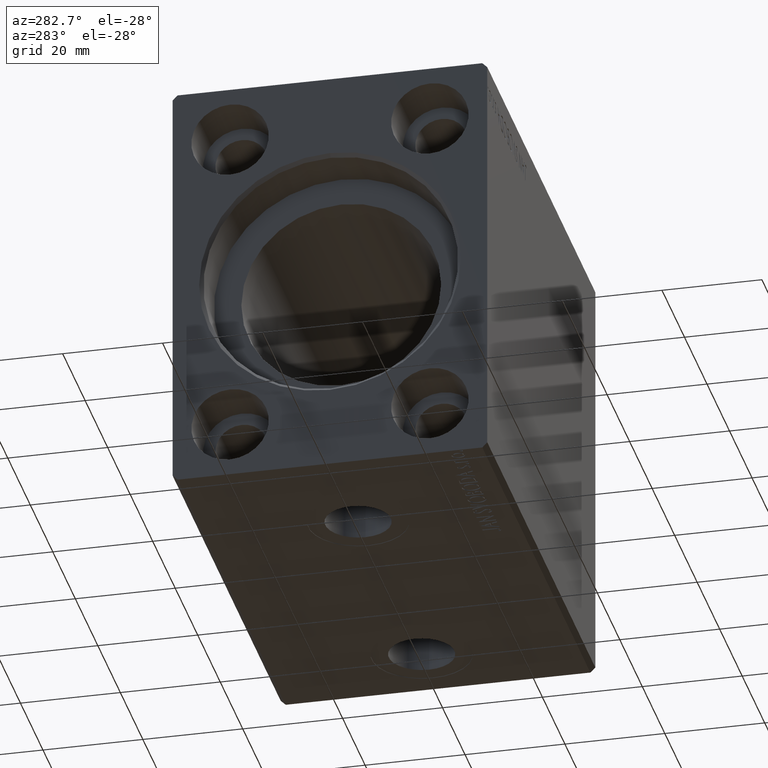
[diagram: clean part render]
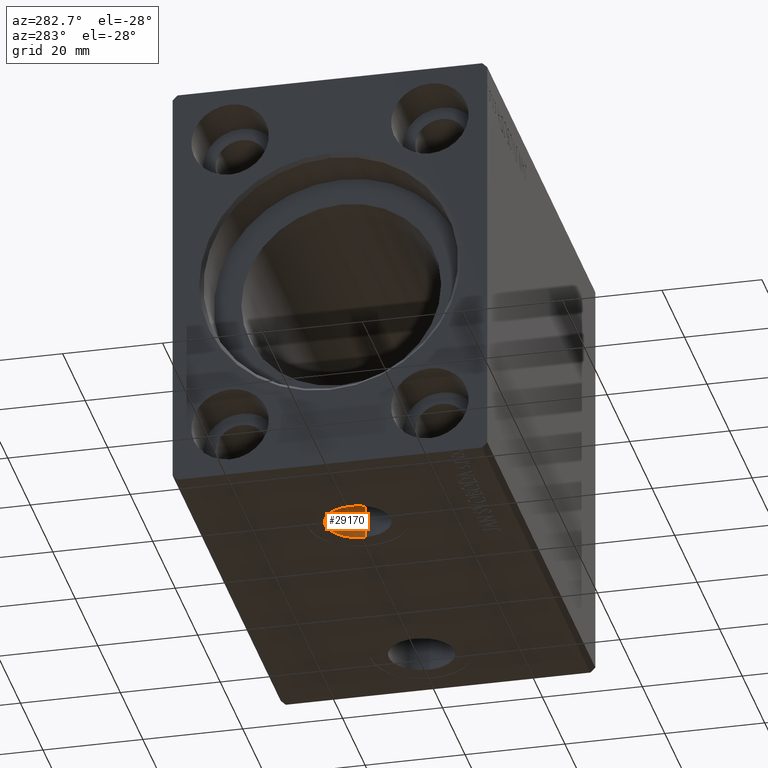
[diagram: same view with one face highlighted and labeled with its STEP entity id]
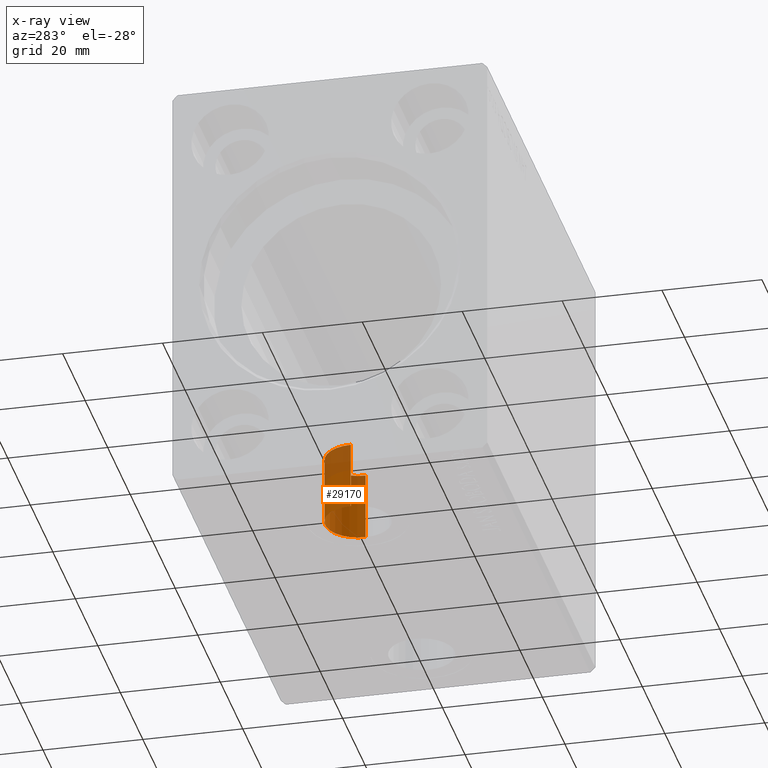
[diagram: x-ray of the same camera — body ghosted, the highlighted face saturated]
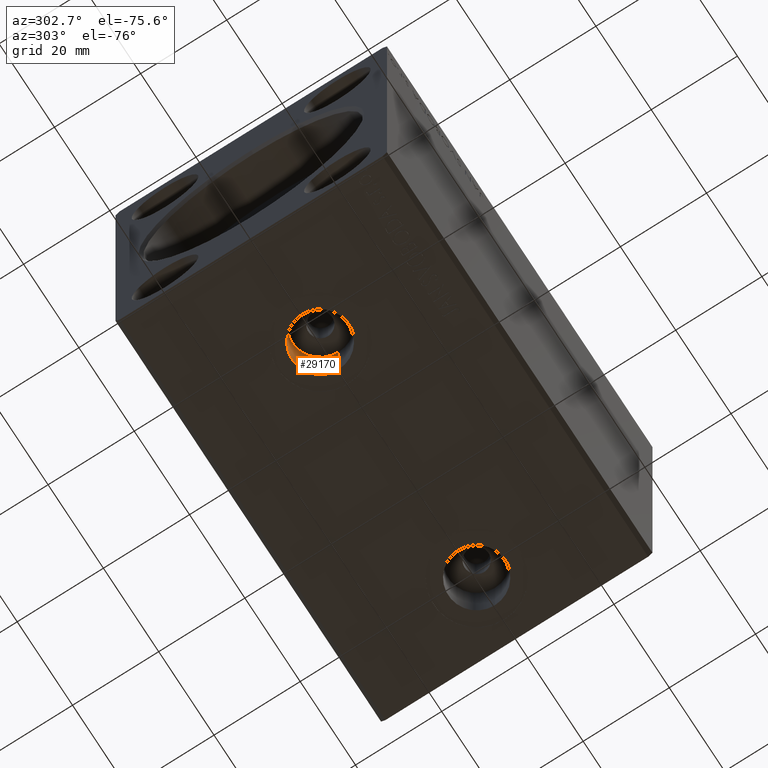
[diagram: same view with one face highlighted and labeled with its STEP entity id]
A machine part, auxiliary view. The second image highlights one B-rep face of the part: STEP entity #29170.
The next image is the same camera in x-ray: the body ghosted, the highlighted face saturated — about 34% of this face is hidden behind the body in this view.
A second angle (auxiliary view) of the same face is appended — the face is thin or edge-on in the first view.
In plain terms, the highlighted cylindrical surface (edge-blend (fillet) strip) has radius 6.58 mm, axis along (-0, -0, -1).
Its self-contained STEP definition (entity closure, byte-faithful):
#108 = ORIENTED_EDGE ( 'NONE', *, *, #204, .T. ) ;
#204 = EDGE_CURVE ( 'NONE', #29319, #208, #37788, .T. ) ;
#208 = VERTEX_POINT ( 'NONE', #37359 ) ;
#923 = CARTESIAN_POINT ( 'NONE',  ( 31.58000000000000540, -1.859936277612589271E-15, -28.80000000000000782 ) ) ;
#1219 = DIRECTION ( 'NONE',  ( 0.000000000000000000, 0.000000000000000000, -1.000000000000000000 ) ) ;
#1504 = AXIS2_PLACEMENT_3D ( 'NONE', #20447, #9940, #33356 ) ;
#1593 = EDGE_CURVE ( 'NONE', #29319, #11335, #34027, .T. ) ;
#5014 = ORIENTED_EDGE ( 'NONE', *, *, #35465, .F. ) ;
#7705 = CARTESIAN_POINT ( 'NONE',  ( 18.41999999999999815, -2.665753871451547918E-15, -28.80000000000000782 ) ) ;
#7847 = DIRECTION ( 'NONE',  ( -0.000000000000000000, -0.000000000000000000, -1.000000000000000000 ) ) ;
#9940 = DIRECTION ( 'NONE',  ( 0.000000000000000000, 0.000000000000000000, -1.000000000000000000 ) ) ;
#11062 = FACE_OUTER_BOUND ( 'NONE', #31767, .T. ) ;
#11335 = VERTEX_POINT ( 'NONE', #923 ) ;
#12286 = ORIENTED_EDGE ( 'NONE', *, *, #1593, .F. ) ;
#12637 = CARTESIAN_POINT ( 'NONE',  ( 31.58000000000000540, -1.859936277612589271E-15, -28.80000000000000782 ) ) ;
#14769 = VECTOR ( 'NONE', #24243, 1000.000000000000000 ) ;
#16638 = CARTESIAN_POINT ( 'NONE',  ( 18.41999999999999815, -2.665753871451547918E-15, -28.80000000000000782 ) ) ;
#18073 = VERTEX_POINT ( 'NONE', #32388 ) ;
#18651 = CIRCLE ( 'NONE', #1504, 6.580000000000002736 ) ;
#19055 = ORIENTED_EDGE ( 'NONE', *, *, #23963, .T. ) ;
#20447 = CARTESIAN_POINT ( 'NONE',  ( 25.00000000000000000, -2.665753871451547918E-15, -42.40000000000000568 ) ) ;
#23963 = EDGE_CURVE ( 'NONE', #208, #18073, #18651, .T. ) ;
#24243 = DIRECTION ( 'NONE',  ( -0.000000000000000000, -0.000000000000000000, -1.000000000000000000 ) ) ;
#25735 = DIRECTION ( 'NONE',  ( -0.000000000000000000, -0.000000000000000000, -1.000000000000000000 ) ) ;
#27625 = CARTESIAN_POINT ( 'NONE',  ( 25.00000000000000000, -2.665753871451547918E-15, -28.80000000000000782 ) ) ;
#29116 = VECTOR ( 'NONE', #25735, 1000.000000000000000 ) ;
#29170 = ADVANCED_FACE ( 'NONE', ( #11062 ), #40505, .F. ) ;
#29319 = VERTEX_POINT ( 'NONE', #16638 ) ;
#31767 = EDGE_LOOP ( 'NONE', ( #5014, #12286, #108, #19055 ) ) ;
#32388 = CARTESIAN_POINT ( 'NONE',  ( 31.58000000000000540, -1.859936277612589271E-15, -42.40000000000000568 ) ) ;
#33356 = DIRECTION ( 'NONE',  ( -1.000000000000000000, 0.000000000000000000, 0.000000000000000000 ) ) ;
#33997 = AXIS2_PLACEMENT_3D ( 'NONE', #27625, #1219, #40745 ) ;
#34027 = CIRCLE ( 'NONE', #33997, 6.580000000000002736 ) ;
#34066 = DIRECTION ( 'NONE',  ( -1.000000000000000000, 0.000000000000000000, 0.000000000000000000 ) ) ;
#35465 = EDGE_CURVE ( 'NONE', #11335, #18073, #42078, .T. ) ;
#37290 = CARTESIAN_POINT ( 'NONE',  ( 25.00000000000000000, -2.665753871451547918E-15, -28.80000000000000782 ) ) ;
#37359 = CARTESIAN_POINT ( 'NONE',  ( 18.41999999999999815, -2.665753871451547918E-15, -42.40000000000000568 ) ) ;
#37788 = LINE ( 'NONE', #7705, #14769 ) ;
#40505 = CYLINDRICAL_SURFACE ( 'NONE', #41322, 6.580000000000002736 ) ;
#40745 = DIRECTION ( 'NONE',  ( -1.000000000000000000, 0.000000000000000000, 0.000000000000000000 ) ) ;
#41322 = AXIS2_PLACEMENT_3D ( 'NONE', #37290, #7847, #34066 ) ;
#42078 = LINE ( 'NONE', #12637, #29116 ) ;